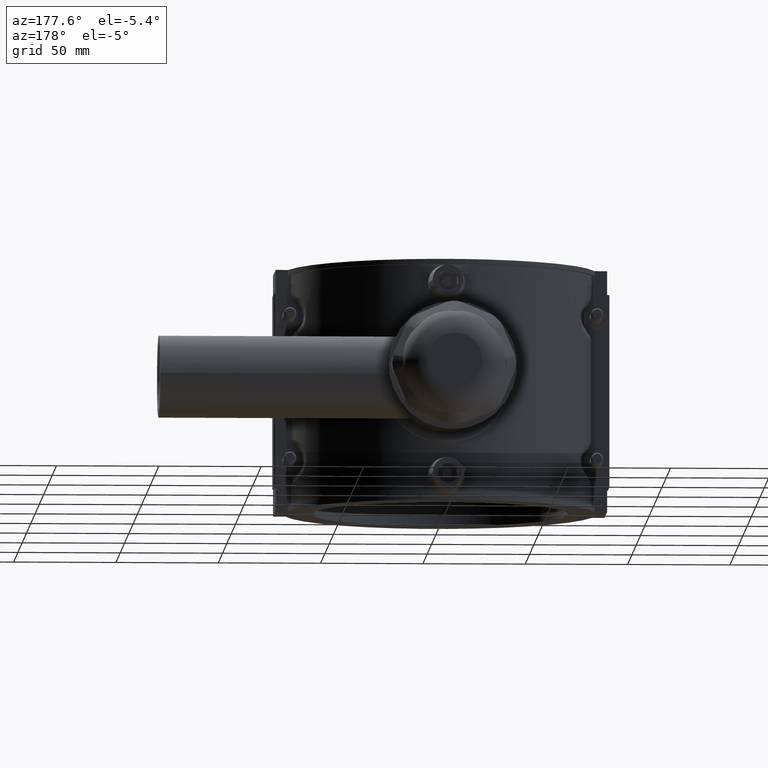
[diagram: clean part render]
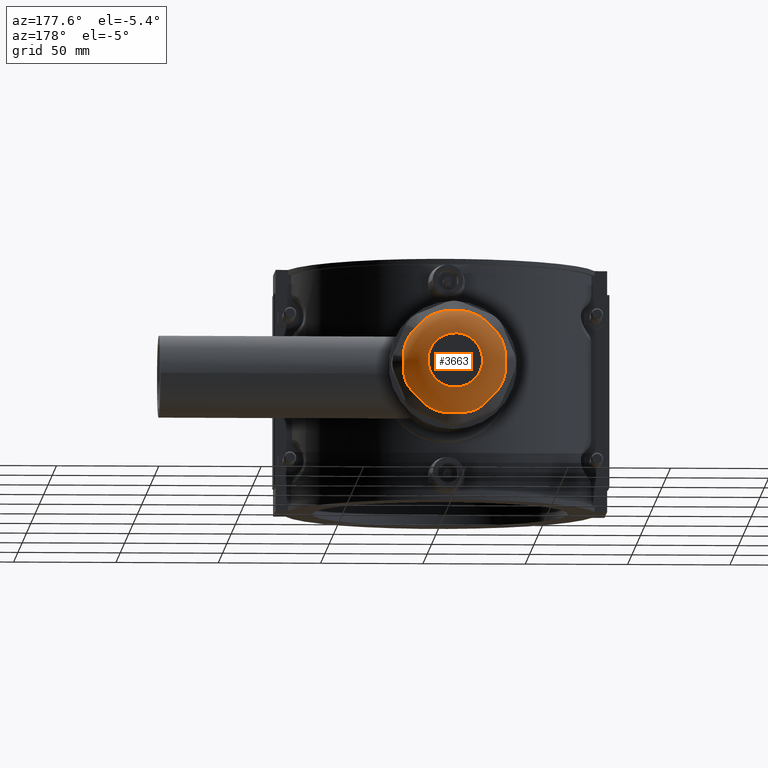
[diagram: same view with one face highlighted and labeled with its STEP entity id]
A machine part, auxiliary view. The second image highlights one B-rep face of the part: STEP entity #3663.
In plain terms, the highlighted toroidal blend (fillet) surface has major radius 13.3458 mm and minor (blend) radius 12.5 mm.
Its self-contained STEP definition (entity closure, byte-faithful):
#15=TOROIDAL_SURFACE('',#3904,13.3458333631272,12.5);
#801=CIRCLE('',#3877,25.);
#802=CIRCLE('',#3879,25.);
#803=CIRCLE('',#3881,25.);
#804=CIRCLE('',#3883,25.);
#805=CIRCLE('',#3885,25.);
#806=CIRCLE('',#3887,25.);
#807=CIRCLE('',#3889,25.);
#808=CIRCLE('',#3891,25.);
#813=CIRCLE('',#3905,13.3458333631272);
#910=FACE_BOUND('',#1239,.T.);
#1009=FACE_OUTER_BOUND('',#1238,.T.);
#1238=EDGE_LOOP('',(#2663,#2664,#2665,#2666,#2667,#2668,#2669,#2670,#2671,
#2672,#2673,#2674,#2675,#2676,#2677,#2678,#2679,#2680,#2681,#2682,#2683,
#2684,#2685,#2686,#2687,#2688,#2689,#2690,#2691,#2692,#2693,#2694));
#1239=EDGE_LOOP('',(#2695));
#1466=B_SPLINE_CURVE_WITH_KNOTS('',3,(#5398,#5399,#5400,#5401),
 .UNSPECIFIED.,.F.,.F.,(4,4),(1.08855433793764,1.23089313147004),
 .UNSPECIFIED.);
#1468=B_SPLINE_CURVE_WITH_KNOTS('',3,(#5434,#5435,#5436,#5437),
 .UNSPECIFIED.,.F.,.F.,(4,4),(0.,0.0873490999777743),.UNSPECIFIED.);
#1470=B_SPLINE_CURVE_WITH_KNOTS('',3,(#5445,#5446,#5447,#5448,#5449,#5450,
#5451,#5452,#5453,#5454,#5455,#5456,#5457,#5458,#5459),.UNSPECIFIED.,.F.,
 .F.,(4,2,2,3,2,2,4),(4.52220046310582,4.61628434124346,4.90606041344941,
5.19583648565536,5.48561255786132,5.77538863006727,5.8694725082049),
 .UNSPECIFIED.);
#1471=B_SPLINE_CURVE_WITH_KNOTS('',3,(#5478,#5479,#5480,#5481),
 .UNSPECIFIED.,.F.,.F.,(4,4),(1.08855433793769,1.23089313147009),
 .UNSPECIFIED.);
#1473=B_SPLINE_CURVE_WITH_KNOTS('',3,(#5514,#5515,#5516,#5517),
 .UNSPECIFIED.,.F.,.F.,(4,4),(0.,0.0873490999777791),.UNSPECIFIED.);
#1475=B_SPLINE_CURVE_WITH_KNOTS('',3,(#5525,#5526,#5527,#5528,#5529,#5530,
#5531,#5532,#5533,#5534,#5535,#5536,#5537,#5538,#5539),.UNSPECIFIED.,.F.,
 .F.,(4,2,2,3,2,2,4),(4.52220046310578,4.61628434124297,4.90606041344914,
5.19583648565532,5.48561255786149,5.77538863006766,5.86947250820485),
 .UNSPECIFIED.);
#1476=B_SPLINE_CURVE_WITH_KNOTS('',3,(#5558,#5559,#5560,#5561),
 .UNSPECIFIED.,.F.,.F.,(4,4),(1.08855433793773,1.23089313147014),
 .UNSPECIFIED.);
#1478=B_SPLINE_CURVE_WITH_KNOTS('',3,(#5594,#5595,#5596,#5597),
 .UNSPECIFIED.,.F.,.F.,(4,4),(0.,0.0873490999777642),.UNSPECIFIED.);
#1480=B_SPLINE_CURVE_WITH_KNOTS('',3,(#5605,#5606,#5607,#5608,#5609,#5610,
#5611,#5612,#5613,#5614,#5615,#5616,#5617,#5618,#5619),.UNSPECIFIED.,.F.,
 .F.,(4,2,2,3,2,2,4),(4.52220046310582,4.61628434124346,4.90606041344941,
5.19583648565536,5.48561255786131,5.77538863006726,5.8694725082049),
 .UNSPECIFIED.);
#1481=B_SPLINE_CURVE_WITH_KNOTS('',3,(#5638,#5639,#5640,#5641),
 .UNSPECIFIED.,.F.,.F.,(4,4),(1.08855433793765,1.23089313147006),
 .UNSPECIFIED.);
#1483=B_SPLINE_CURVE_WITH_KNOTS('',3,(#5674,#5675,#5676,#5677),
 .UNSPECIFIED.,.F.,.F.,(4,4),(0.,0.0873490999777652),.UNSPECIFIED.);
#1485=B_SPLINE_CURVE_WITH_KNOTS('',3,(#5685,#5686,#5687,#5688,#5689,#5690,
#5691,#5692,#5693,#5694,#5695,#5696,#5697,#5698,#5699),.UNSPECIFIED.,.F.,
 .F.,(4,2,2,3,2,2,4),(4.5222004631058,4.61628434124345,4.90606041344939,
5.19583648565534,5.48561255786128,5.77538863006723,5.86947250820488),
 .UNSPECIFIED.);
#1486=B_SPLINE_CURVE_WITH_KNOTS('',3,(#5718,#5719,#5720,#5721),
 .UNSPECIFIED.,.F.,.F.,(4,4),(1.08855433793767,1.23089313147008),
 .UNSPECIFIED.);
#1488=B_SPLINE_CURVE_WITH_KNOTS('',3,(#5754,#5755,#5756,#5757),
 .UNSPECIFIED.,.F.,.F.,(4,4),(0.,0.0873490999777749),.UNSPECIFIED.);
#1490=B_SPLINE_CURVE_WITH_KNOTS('',3,(#5765,#5766,#5767,#5768,#5769,#5770,
#5771,#5772,#5773,#5774,#5775,#5776,#5777,#5778,#5779),.UNSPECIFIED.,.F.,
 .F.,(4,2,2,3,2,2,4),(4.52220046310579,4.61628434124342,4.90606041344938,
5.19583648565534,5.4856125578613,5.77538863006725,5.86947250820488),
 .UNSPECIFIED.);
#1491=B_SPLINE_CURVE_WITH_KNOTS('',3,(#5798,#5799,#5800,#5801),
 .UNSPECIFIED.,.F.,.F.,(4,4),(1.08855433793773,1.23089313147015),
 .UNSPECIFIED.);
#1493=B_SPLINE_CURVE_WITH_KNOTS('',3,(#5834,#5835,#5836,#5837),
 .UNSPECIFIED.,.F.,.F.,(4,4),(0.,0.0873490999777837),.UNSPECIFIED.);
#1495=B_SPLINE_CURVE_WITH_KNOTS('',3,(#5845,#5846,#5847,#5848,#5849,#5850,
#5851,#5852,#5853,#5854,#5855,#5856,#5857,#5858,#5859),.UNSPECIFIED.,.F.,
 .F.,(4,2,2,3,2,2,4),(4.52220046310581,4.61628434124344,4.90606041344939,
5.19583648565535,5.4856125578613,5.77538863006725,5.86947250820489),
 .UNSPECIFIED.);
#1496=B_SPLINE_CURVE_WITH_KNOTS('',3,(#5878,#5879,#5880,#5881),
 .UNSPECIFIED.,.F.,.F.,(4,4),(1.08855433793748,1.23089313146985),
 .UNSPECIFIED.);
#1498=B_SPLINE_CURVE_WITH_KNOTS('',3,(#5914,#5915,#5916,#5917),
 .UNSPECIFIED.,.F.,.F.,(4,4),(0.,0.0873490999777666),.UNSPECIFIED.);
#1500=B_SPLINE_CURVE_WITH_KNOTS('',3,(#5925,#5926,#5927,#5928,#5929,#5930,
#5931,#5932,#5933,#5934,#5935,#5936,#5937,#5938,#5939),.UNSPECIFIED.,.F.,
 .F.,(4,2,2,3,2,2,4),(4.52220046310579,4.61628434124341,4.90606041344937,
5.19583648565533,5.48561255786128,5.77538863006724,5.86947250820487),
 .UNSPECIFIED.);
#1501=B_SPLINE_CURVE_WITH_KNOTS('',3,(#5958,#5959,#5960,#5961),
 .UNSPECIFIED.,.F.,.F.,(4,4),(1.08855433793768,1.2308931314701),
 .UNSPECIFIED.);
#1503=B_SPLINE_CURVE_WITH_KNOTS('',3,(#5985,#5986,#5987,#5988),
 .UNSPECIFIED.,.F.,.F.,(4,4),(0.,0.0873490999777558),.UNSPECIFIED.);
#1505=B_SPLINE_CURVE_WITH_KNOTS('',3,(#5996,#5997,#5998,#5999,#6000,#6001,
#6002,#6003,#6004,#6005,#6006,#6007,#6008,#6009,#6010),.UNSPECIFIED.,.F.,
 .F.,(4,2,2,3,2,2,4),(4.5222004631058,4.61628434124343,4.90606041344938,
5.19583648565534,5.48561255786129,5.77538863006725,5.86947250820488),
 .UNSPECIFIED.);
#1585=VERTEX_POINT('',#5374);
#1586=VERTEX_POINT('',#5376);
#1588=VERTEX_POINT('',#5397);
#1591=VERTEX_POINT('',#5410);
#1592=VERTEX_POINT('',#5412);
#1594=VERTEX_POINT('',#5433);
#1596=VERTEX_POINT('',#5477);
#1599=VERTEX_POINT('',#5490);
#1600=VERTEX_POINT('',#5492);
#1602=VERTEX_POINT('',#5513);
#1604=VERTEX_POINT('',#5557);
#1607=VERTEX_POINT('',#5570);
#1608=VERTEX_POINT('',#5572);
#1610=VERTEX_POINT('',#5593);
#1612=VERTEX_POINT('',#5637);
#1615=VERTEX_POINT('',#5650);
#1616=VERTEX_POINT('',#5652);
#1618=VERTEX_POINT('',#5673);
#1620=VERTEX_POINT('',#5717);
#1623=VERTEX_POINT('',#5730);
#1624=VERTEX_POINT('',#5732);
#1626=VERTEX_POINT('',#5753);
#1628=VERTEX_POINT('',#5797);
#1631=VERTEX_POINT('',#5810);
#1632=VERTEX_POINT('',#5812);
#1634=VERTEX_POINT('',#5833);
#1636=VERTEX_POINT('',#5877);
#1639=VERTEX_POINT('',#5890);
#1640=VERTEX_POINT('',#5892);
#1642=VERTEX_POINT('',#5913);
#1644=VERTEX_POINT('',#5957);
#1646=VERTEX_POINT('',#5984);
#1657=VERTEX_POINT('',#6063);
#1942=EDGE_CURVE('',#1586,#1588,#1466,.F.);
#1949=EDGE_CURVE('',#1594,#1591,#1468,.F.);
#1952=EDGE_CURVE('',#1588,#1594,#1470,.F.);
#1954=EDGE_CURVE('',#1592,#1596,#1471,.F.);
#1961=EDGE_CURVE('',#1602,#1599,#1473,.F.);
#1964=EDGE_CURVE('',#1596,#1602,#1475,.F.);
#1966=EDGE_CURVE('',#1600,#1604,#1476,.F.);
#1973=EDGE_CURVE('',#1610,#1607,#1478,.F.);
#1976=EDGE_CURVE('',#1604,#1610,#1480,.F.);
#1978=EDGE_CURVE('',#1608,#1612,#1481,.F.);
#1985=EDGE_CURVE('',#1618,#1615,#1483,.F.);
#1988=EDGE_CURVE('',#1612,#1618,#1485,.F.);
#1990=EDGE_CURVE('',#1616,#1620,#1486,.F.);
#1997=EDGE_CURVE('',#1626,#1623,#1488,.F.);
#2000=EDGE_CURVE('',#1620,#1626,#1490,.F.);
#2002=EDGE_CURVE('',#1624,#1628,#1491,.F.);
#2009=EDGE_CURVE('',#1634,#1631,#1493,.F.);
#2012=EDGE_CURVE('',#1628,#1634,#1495,.F.);
#2014=EDGE_CURVE('',#1632,#1636,#1496,.F.);
#2021=EDGE_CURVE('',#1642,#1639,#1498,.F.);
#2024=EDGE_CURVE('',#1636,#1642,#1500,.F.);
#2026=EDGE_CURVE('',#1640,#1644,#1501,.F.);
#2029=EDGE_CURVE('',#1646,#1585,#1503,.F.);
#2032=EDGE_CURVE('',#1644,#1646,#1505,.F.);
#2034=EDGE_CURVE('',#1608,#1607,#801,.T.);
#2035=EDGE_CURVE('',#1600,#1599,#802,.T.);
#2036=EDGE_CURVE('',#1592,#1591,#803,.T.);
#2037=EDGE_CURVE('',#1586,#1585,#804,.T.);
#2038=EDGE_CURVE('',#1640,#1639,#805,.T.);
#2039=EDGE_CURVE('',#1632,#1631,#806,.T.);
#2040=EDGE_CURVE('',#1624,#1623,#807,.T.);
#2041=EDGE_CURVE('',#1616,#1615,#808,.T.);
#2059=EDGE_CURVE('',#1657,#1657,#813,.T.);
#2663=ORIENTED_EDGE('',*,*,#2036,.T.);
#2664=ORIENTED_EDGE('',*,*,#1949,.F.);
#2665=ORIENTED_EDGE('',*,*,#1952,.F.);
#2666=ORIENTED_EDGE('',*,*,#1942,.F.);
#2667=ORIENTED_EDGE('',*,*,#2037,.T.);
#2668=ORIENTED_EDGE('',*,*,#2029,.F.);
#2669=ORIENTED_EDGE('',*,*,#2032,.F.);
#2670=ORIENTED_EDGE('',*,*,#2026,.F.);
#2671=ORIENTED_EDGE('',*,*,#2038,.T.);
#2672=ORIENTED_EDGE('',*,*,#2021,.F.);
#2673=ORIENTED_EDGE('',*,*,#2024,.F.);
#2674=ORIENTED_EDGE('',*,*,#2014,.F.);
#2675=ORIENTED_EDGE('',*,*,#2039,.T.);
#2676=ORIENTED_EDGE('',*,*,#2009,.F.);
#2677=ORIENTED_EDGE('',*,*,#2012,.F.);
#2678=ORIENTED_EDGE('',*,*,#2002,.F.);
#2679=ORIENTED_EDGE('',*,*,#2040,.T.);
#2680=ORIENTED_EDGE('',*,*,#1997,.F.);
#2681=ORIENTED_EDGE('',*,*,#2000,.F.);
#2682=ORIENTED_EDGE('',*,*,#1990,.F.);
#2683=ORIENTED_EDGE('',*,*,#2041,.T.);
#2684=ORIENTED_EDGE('',*,*,#1985,.F.);
#2685=ORIENTED_EDGE('',*,*,#1988,.F.);
#2686=ORIENTED_EDGE('',*,*,#1978,.F.);
#2687=ORIENTED_EDGE('',*,*,#2034,.T.);
#2688=ORIENTED_EDGE('',*,*,#1973,.F.);
#2689=ORIENTED_EDGE('',*,*,#1976,.F.);
#2690=ORIENTED_EDGE('',*,*,#1966,.F.);
#2691=ORIENTED_EDGE('',*,*,#2035,.T.);
#2692=ORIENTED_EDGE('',*,*,#1961,.F.);
#2693=ORIENTED_EDGE('',*,*,#1964,.F.);
#2694=ORIENTED_EDGE('',*,*,#1954,.F.);
#2695=ORIENTED_EDGE('',*,*,#2059,.T.);
#3663=ADVANCED_FACE('',(#1009,#910),#15,.T.);
#3877=AXIS2_PLACEMENT_3D('',#6013,#4286,#4287);
#3879=AXIS2_PLACEMENT_3D('',#6015,#4290,#4291);
#3881=AXIS2_PLACEMENT_3D('',#6017,#4294,#4295);
#3883=AXIS2_PLACEMENT_3D('',#6019,#4298,#4299);
#3885=AXIS2_PLACEMENT_3D('',#6021,#4302,#4303);
#3887=AXIS2_PLACEMENT_3D('',#6023,#4306,#4307);
#3889=AXIS2_PLACEMENT_3D('',#6025,#4310,#4311);
#3891=AXIS2_PLACEMENT_3D('',#6027,#4314,#4315);
#3904=AXIS2_PLACEMENT_3D('',#6062,#4353,#4354);
#3905=AXIS2_PLACEMENT_3D('',#6064,#4355,#4356);
#4286=DIRECTION('center_axis',(0.,1.,3.06161699786838E-16));
#4287=DIRECTION('ref_axis',(1.,0.,0.));
#4290=DIRECTION('center_axis',(0.,1.,3.06161699786838E-16));
#4291=DIRECTION('ref_axis',(1.,0.,0.));
#4294=DIRECTION('center_axis',(0.,1.,3.06161699786838E-16));
#4295=DIRECTION('ref_axis',(1.,0.,0.));
#4298=DIRECTION('center_axis',(0.,1.,3.06161699786838E-16));
#4299=DIRECTION('ref_axis',(1.,0.,0.));
#4302=DIRECTION('center_axis',(0.,1.,3.06161699786838E-16));
#4303=DIRECTION('ref_axis',(1.,0.,0.));
#4306=DIRECTION('center_axis',(0.,1.,3.06161699786838E-16));
#4307=DIRECTION('ref_axis',(1.,0.,0.));
#4310=DIRECTION('center_axis',(0.,1.,3.06161699786838E-16));
#4311=DIRECTION('ref_axis',(1.,0.,0.));
#4314=DIRECTION('center_axis',(0.,1.,3.06161699786838E-16));
#4315=DIRECTION('ref_axis',(1.,0.,0.));
#4353=DIRECTION('center_axis',(0.,1.,3.06161699786838E-16));
#4354=DIRECTION('ref_axis',(-6.12323399573677E-17,0.,1.));
#4355=DIRECTION('center_axis',(0.,-1.,-3.06161699786838E-16));
#4356=DIRECTION('ref_axis',(-6.12323399573677E-17,-3.32754948879419E-16,
1.));
#5374=CARTESIAN_POINT('',(-19.126208678676,168.52,-16.099321152761));
#5376=CARTESIAN_POINT('',(-16.099321152761,168.52,-19.126208678676));
#5397=CARTESIAN_POINT('',(-15.5196838126061,168.20758258967,-19.7477336477909));
#5398=CARTESIAN_POINT('Ctrl Pts',(-15.5196838126062,168.20758258967,-19.7477336477908));
#5399=CARTESIAN_POINT('Ctrl Pts',(-15.7224557817307,168.327642621569,-19.5337907060166));
#5400=CARTESIAN_POINT('Ctrl Pts',(-15.9151953273503,168.432147372631,-19.3257322216333));
#5401=CARTESIAN_POINT('Ctrl Pts',(-16.099321152761,168.52,-19.126208678676));
#5410=CARTESIAN_POINT('',(-2.14033269546344,168.52,-24.9082110146981));
#5412=CARTESIAN_POINT('',(2.14033269546349,168.52,-24.9082110146981));
#5433=CARTESIAN_POINT('',(-2.98968270965376,168.20758258967,-24.9378300411836));
#5434=CARTESIAN_POINT('Ctrl Pts',(-2.14033269546344,168.52,-24.9082110146981));
#5435=CARTESIAN_POINT('Ctrl Pts',(-2.41713157276955,168.430360466263,-24.9193203016705));
#5436=CARTESIAN_POINT('Ctrl Pts',(-2.70023309130938,168.325518860951,-24.93007069856));
#5437=CARTESIAN_POINT('Ctrl Pts',(-2.98968270965375,168.20758258967,-24.9378300411836));
#5445=CARTESIAN_POINT('Ctrl Pts',(-2.98968270965461,168.20758258967,-24.9378300411836));
#5446=CARTESIAN_POINT('Ctrl Pts',(-3.30765873628699,168.078023230939,-24.9463540978081));
#5447=CARTESIAN_POINT('Ctrl Pts',(-3.62686123918216,167.960011468837,-24.9418711028071));
#5448=CARTESIAN_POINT('Ctrl Pts',(-4.83691219495735,167.54775242088,-24.8868775637717));
#5449=CARTESIAN_POINT('Ctrl Pts',(-5.85136238792362,167.290865148452,-24.7447313155233));
#5450=CARTESIAN_POINT('Ctrl Pts',(-7.86763062559708,166.95829329166,-24.2695388499253));
#5451=CARTESIAN_POINT('Ctrl Pts',(-8.86947972560032,166.882230191359,-23.9368894717484));
#5452=CARTESIAN_POINT('Ctrl Pts',(-9.76187366600896,166.882230191359,-23.5672477986516));
#5453=CARTESIAN_POINT('Ctrl Pts',(-10.6542676064176,166.882230191359,-23.1976061255547));
#5454=CARTESIAN_POINT('Ctrl Pts',(-11.5979005298219,166.95829329166,-22.7244104642832));
#5455=CARTESIAN_POINT('Ctrl Pts',(-13.359629288165,167.290865148452,-21.6347053355264));
#5456=CARTESIAN_POINT('Ctrl Pts',(-14.1774664748441,167.54775242088,-21.0178933009606));
#5457=CARTESIAN_POINT('Ctrl Pts',(-15.0719880156274,167.960011468837,-20.2011443689241));
#5458=CARTESIAN_POINT('Ctrl Pts',(-15.3008682261614,168.078023230939,-19.9786040707204));
#5459=CARTESIAN_POINT('Ctrl Pts',(-15.5196838126056,168.20758258967,-19.7477336477915));
#5477=CARTESIAN_POINT('',(2.98968270965381,168.20758258967,-24.9378300411836));
#5478=CARTESIAN_POINT('Ctrl Pts',(2.98968270965379,168.20758258967,-24.9378300411836));
#5479=CARTESIAN_POINT('Ctrl Pts',(2.69502077033574,168.327642621569,-24.9299309706705));
#5480=CARTESIAN_POINT('Ctrl Pts',(2.41161376543449,168.432147372631,-24.9190988451901));
#5481=CARTESIAN_POINT('Ctrl Pts',(2.14033269546349,168.52,-24.9082110146981));
#5490=CARTESIAN_POINT('',(16.099321152761,168.52,-19.126208678676));
#5492=CARTESIAN_POINT('',(19.126208678676,168.52,-16.099321152761));
#5513=CARTESIAN_POINT('',(15.5196838126062,168.20758258967,-19.7477336477908));
#5514=CARTESIAN_POINT('Ctrl Pts',(16.099321152761,168.52,-19.126208678676));
#5515=CARTESIAN_POINT('Ctrl Pts',(15.9114502417453,168.430360466263,-19.3297904939963));
#5516=CARTESIAN_POINT('Ctrl Pts',(15.7188689167627,168.325518860951,-19.537575176061));
#5517=CARTESIAN_POINT('Ctrl Pts',(15.5196838126062,168.20758258967,-19.7477336477909));
#5525=CARTESIAN_POINT('Ctrl Pts',(15.5196838126056,168.20758258967,-19.7477336477915));
#5526=CARTESIAN_POINT('Ctrl Pts',(15.3008682261625,168.07802323094,-19.9786040707193));
#5527=CARTESIAN_POINT('Ctrl Pts',(15.0719880156297,167.960011468839,-20.2011443689218));
#5528=CARTESIAN_POINT('Ctrl Pts',(14.1774664748473,167.547752420881,-21.0178933009581));
#5529=CARTESIAN_POINT('Ctrl Pts',(13.3596292881678,167.290865148453,-21.6347053355244));
#5530=CARTESIAN_POINT('Ctrl Pts',(11.5979005298236,166.95829329166,-22.7244104642823));
#5531=CARTESIAN_POINT('Ctrl Pts',(10.6542676064179,166.88223019136,-23.1976061255535));
#5532=CARTESIAN_POINT('Ctrl Pts',(9.76187366600857,166.88223019136,-23.5672477986506));
#5533=CARTESIAN_POINT('Ctrl Pts',(8.86947972559924,166.88223019136,-23.9368894717477));
#5534=CARTESIAN_POINT('Ctrl Pts',(7.86763062559531,166.95829329166,-24.2695388499259));
#5535=CARTESIAN_POINT('Ctrl Pts',(5.85136238792033,167.290865148453,-24.7447313155239));
#5536=CARTESIAN_POINT('Ctrl Pts',(4.83691219495331,167.547752420881,-24.8868775637722));
#5537=CARTESIAN_POINT('Ctrl Pts',(3.62686123917896,167.960011468839,-24.9418711028072));
#5538=CARTESIAN_POINT('Ctrl Pts',(3.30765873628549,168.07802323094,-24.946354097808));
#5539=CARTESIAN_POINT('Ctrl Pts',(2.98968270965467,168.20758258967,-24.9378300411836));
#5557=CARTESIAN_POINT('',(19.7477336477909,168.20758258967,-15.5196838126061));
#5558=CARTESIAN_POINT('Ctrl Pts',(19.7477336477909,168.20758258967,-15.5196838126061));
#5559=CARTESIAN_POINT('Ctrl Pts',(19.5337907060166,168.327642621569,-15.7224557817306));
#5560=CARTESIAN_POINT('Ctrl Pts',(19.3257322216333,168.432147372631,-15.9151953273502));
#5561=CARTESIAN_POINT('Ctrl Pts',(19.126208678676,168.52,-16.099321152761));
#5570=CARTESIAN_POINT('',(24.9082110146982,168.52,-2.14033269546337));
#5572=CARTESIAN_POINT('',(24.9082110146982,168.52,2.14033269546347));
#5593=CARTESIAN_POINT('',(24.9378300411836,168.20758258967,-2.98968270965374));
#5594=CARTESIAN_POINT('Ctrl Pts',(24.9082110146981,168.52,-2.14033269546338));
#5595=CARTESIAN_POINT('Ctrl Pts',(24.9193203016705,168.430360466263,-2.41713157276946));
#5596=CARTESIAN_POINT('Ctrl Pts',(24.93007069856,168.325518860951,-2.70023309130931));
#5597=CARTESIAN_POINT('Ctrl Pts',(24.9378300411836,168.20758258967,-2.98968270965376));
#5605=CARTESIAN_POINT('Ctrl Pts',(24.9378300411836,168.20758258967,-2.9896827096546));
#5606=CARTESIAN_POINT('Ctrl Pts',(24.9463540978081,168.078023230939,-3.30765873628699));
#5607=CARTESIAN_POINT('Ctrl Pts',(24.9418711028072,167.960011468837,-3.62686123918216));
#5608=CARTESIAN_POINT('Ctrl Pts',(24.8868775637717,167.54775242088,-4.83691219495736));
#5609=CARTESIAN_POINT('Ctrl Pts',(24.7447313155233,167.290865148452,-5.85136238792362));
#5610=CARTESIAN_POINT('Ctrl Pts',(24.2695388499253,166.95829329166,-7.86763062559706));
#5611=CARTESIAN_POINT('Ctrl Pts',(23.9368894717484,166.882230191359,-8.86947972560028));
#5612=CARTESIAN_POINT('Ctrl Pts',(23.5672477986516,166.882230191359,-9.76187366600891));
#5613=CARTESIAN_POINT('Ctrl Pts',(23.1976061255548,166.882230191359,-10.6542676064175));
#5614=CARTESIAN_POINT('Ctrl Pts',(22.7244104642832,166.95829329166,-11.5979005298218));
#5615=CARTESIAN_POINT('Ctrl Pts',(21.6347053355264,167.290865148452,-13.3596292881649));
#5616=CARTESIAN_POINT('Ctrl Pts',(21.0178933009606,167.54775242088,-14.177466474844));
#5617=CARTESIAN_POINT('Ctrl Pts',(20.2011443689241,167.960011468837,-15.0719880156273));
#5618=CARTESIAN_POINT('Ctrl Pts',(19.9786040707204,168.078023230939,-15.3008682261614));
#5619=CARTESIAN_POINT('Ctrl Pts',(19.7477336477915,168.20758258967,-15.5196838126055));
#5637=CARTESIAN_POINT('',(24.9378300411836,168.20758258967,2.98968270965383));
#5638=CARTESIAN_POINT('Ctrl Pts',(24.9378300411836,168.20758258967,2.98968270965384));
#5639=CARTESIAN_POINT('Ctrl Pts',(24.9299309706705,168.327642621569,2.69502077033577));
#5640=CARTESIAN_POINT('Ctrl Pts',(24.9190988451901,168.432147372631,2.41161376543449));
#5641=CARTESIAN_POINT('Ctrl Pts',(24.9082110146982,168.52,2.14033269546348));
#5650=CARTESIAN_POINT('',(19.126208678676,168.52,16.0993211527611));
#5652=CARTESIAN_POINT('',(16.0993211527611,168.52,19.126208678676));
#5673=CARTESIAN_POINT('',(19.7477336477909,168.20758258967,15.5196838126062));
#5674=CARTESIAN_POINT('Ctrl Pts',(19.126208678676,168.52,16.0993211527611));
#5675=CARTESIAN_POINT('Ctrl Pts',(19.3297904939962,168.430360466263,15.9114502417454));
#5676=CARTESIAN_POINT('Ctrl Pts',(19.537575176061,168.325518860951,15.7188689167627));
#5677=CARTESIAN_POINT('Ctrl Pts',(19.7477336477909,168.20758258967,15.5196838126062));
#5685=CARTESIAN_POINT('Ctrl Pts',(19.7477336477915,168.20758258967,15.5196838126056));
#5686=CARTESIAN_POINT('Ctrl Pts',(19.9786040707205,168.078023230939,15.3008682261615));
#5687=CARTESIAN_POINT('Ctrl Pts',(20.2011443689242,167.960011468837,15.0719880156274));
#5688=CARTESIAN_POINT('Ctrl Pts',(21.0178933009607,167.54775242088,14.177466474844));
#5689=CARTESIAN_POINT('Ctrl Pts',(21.6347053355264,167.290865148452,13.3596292881649));
#5690=CARTESIAN_POINT('Ctrl Pts',(22.7244104642832,166.95829329166,11.5979005298219));
#5691=CARTESIAN_POINT('Ctrl Pts',(23.1976061255548,166.882230191359,10.6542676064176));
#5692=CARTESIAN_POINT('Ctrl Pts',(23.5672477986516,166.882230191359,9.76187366600901));
#5693=CARTESIAN_POINT('Ctrl Pts',(23.9368894717484,166.882230191359,8.86947972560039));
#5694=CARTESIAN_POINT('Ctrl Pts',(24.2695388499253,166.95829329166,7.86763062559718));
#5695=CARTESIAN_POINT('Ctrl Pts',(24.7447313155233,167.290865148452,5.85136238792377));
#5696=CARTESIAN_POINT('Ctrl Pts',(24.8868775637717,167.54775242088,4.83691219495752));
#5697=CARTESIAN_POINT('Ctrl Pts',(24.9418711028072,167.960011468837,3.62686123918231));
#5698=CARTESIAN_POINT('Ctrl Pts',(24.9463540978081,168.078023230939,3.30765873628713));
#5699=CARTESIAN_POINT('Ctrl Pts',(24.9378300411836,168.20758258967,2.9896827096547));
#5717=CARTESIAN_POINT('',(15.5196838126061,168.20758258967,19.7477336477909));
#5718=CARTESIAN_POINT('Ctrl Pts',(15.5196838126062,168.20758258967,19.7477336477909));
#5719=CARTESIAN_POINT('Ctrl Pts',(15.7224557817307,168.327642621569,19.5337907060166));
#5720=CARTESIAN_POINT('Ctrl Pts',(15.9151953273503,168.432147372632,19.3257322216334));
#5721=CARTESIAN_POINT('Ctrl Pts',(16.099321152761,168.52,19.126208678676));
#5730=CARTESIAN_POINT('',(2.14033269546345,168.52,24.9082110146982));
#5732=CARTESIAN_POINT('',(-2.14033269546348,168.52,24.9082110146982));
#5753=CARTESIAN_POINT('',(2.98968270965377,168.20758258967,24.9378300411836));
#5754=CARTESIAN_POINT('Ctrl Pts',(2.14033269546345,168.52,24.9082110146982));
#5755=CARTESIAN_POINT('Ctrl Pts',(2.41713157276957,168.430360466263,24.9193203016705));
#5756=CARTESIAN_POINT('Ctrl Pts',(2.70023309130939,168.325518860951,24.9300706985601));
#5757=CARTESIAN_POINT('Ctrl Pts',(2.98968270965376,168.20758258967,24.9378300411836));
#5765=CARTESIAN_POINT('Ctrl Pts',(2.98968270965462,168.20758258967,24.9378300411836));
#5766=CARTESIAN_POINT('Ctrl Pts',(3.30765873628695,168.078023230939,24.9463540978082));
#5767=CARTESIAN_POINT('Ctrl Pts',(3.62686123918203,167.960011468837,24.9418711028072));
#5768=CARTESIAN_POINT('Ctrl Pts',(4.83691219495719,167.54775242088,24.8868775637718));
#5769=CARTESIAN_POINT('Ctrl Pts',(5.85136238792349,167.290865148452,24.7447313155234));
#5770=CARTESIAN_POINT('Ctrl Pts',(7.86763062559701,166.95829329166,24.2695388499254));
#5771=CARTESIAN_POINT('Ctrl Pts',(8.86947972560028,166.882230191359,23.9368894717485));
#5772=CARTESIAN_POINT('Ctrl Pts',(9.76187366600895,166.882230191359,23.5672477986516));
#5773=CARTESIAN_POINT('Ctrl Pts',(10.6542676064176,166.882230191359,23.1976061255548));
#5774=CARTESIAN_POINT('Ctrl Pts',(11.5979005298219,166.95829329166,22.7244104642832));
#5775=CARTESIAN_POINT('Ctrl Pts',(13.3596292881651,167.290865148452,21.6347053355263));
#5776=CARTESIAN_POINT('Ctrl Pts',(14.1774664748442,167.54775242088,21.0178933009605));
#5777=CARTESIAN_POINT('Ctrl Pts',(15.0719880156275,167.960011468837,20.2011443689241));
#5778=CARTESIAN_POINT('Ctrl Pts',(15.3008682261615,168.078023230939,19.9786040707204));
#5779=CARTESIAN_POINT('Ctrl Pts',(15.5196838126056,168.20758258967,19.7477336477915));
#5797=CARTESIAN_POINT('',(-2.9896827096538,168.20758258967,24.9378300411836));
#5798=CARTESIAN_POINT('Ctrl Pts',(-2.98968270965378,168.20758258967,24.9378300411836));
#5799=CARTESIAN_POINT('Ctrl Pts',(-2.69502077033573,168.327642621569,24.9299309706705));
#5800=CARTESIAN_POINT('Ctrl Pts',(-2.41161376543448,168.432147372631,24.9190988451901));
#5801=CARTESIAN_POINT('Ctrl Pts',(-2.14033269546347,168.52,24.9082110146982));
#5810=CARTESIAN_POINT('',(-16.099321152761,168.52,19.1262086786761));
#5812=CARTESIAN_POINT('',(-19.126208678676,168.52,16.0993211527611));
#5833=CARTESIAN_POINT('',(-15.5196838126062,168.20758258967,19.7477336477909));
#5834=CARTESIAN_POINT('Ctrl Pts',(-16.099321152761,168.52,19.126208678676));
#5835=CARTESIAN_POINT('Ctrl Pts',(-15.9114502417453,168.430360466263,19.3297904939963));
#5836=CARTESIAN_POINT('Ctrl Pts',(-15.7188689167627,168.325518860951,19.5375751760611));
#5837=CARTESIAN_POINT('Ctrl Pts',(-15.5196838126062,168.20758258967,19.7477336477909));
#5845=CARTESIAN_POINT('Ctrl Pts',(-15.5196838126056,168.20758258967,19.7477336477915));
#5846=CARTESIAN_POINT('Ctrl Pts',(-15.3008682261615,168.078023230939,19.9786040707204));
#5847=CARTESIAN_POINT('Ctrl Pts',(-15.0719880156274,167.960011468837,20.2011443689241));
#5848=CARTESIAN_POINT('Ctrl Pts',(-14.1774664748442,167.54775242088,21.0178933009606));
#5849=CARTESIAN_POINT('Ctrl Pts',(-13.359629288165,167.290865148452,21.6347053355264));
#5850=CARTESIAN_POINT('Ctrl Pts',(-11.5979005298219,166.95829329166,22.7244104642832));
#5851=CARTESIAN_POINT('Ctrl Pts',(-10.6542676064176,166.882230191359,23.1976061255548));
#5852=CARTESIAN_POINT('Ctrl Pts',(-9.76187366600897,166.882230191359,23.5672477986516));
#5853=CARTESIAN_POINT('Ctrl Pts',(-8.86947972560032,166.882230191359,23.9368894717485));
#5854=CARTESIAN_POINT('Ctrl Pts',(-7.86763062559707,166.95829329166,24.2695388499254));
#5855=CARTESIAN_POINT('Ctrl Pts',(-5.85136238792359,167.290865148452,24.7447313155234));
#5856=CARTESIAN_POINT('Ctrl Pts',(-4.8369121949573,167.54775242088,24.8868775637718));
#5857=CARTESIAN_POINT('Ctrl Pts',(-3.62686123918213,167.960011468837,24.9418711028072));
#5858=CARTESIAN_POINT('Ctrl Pts',(-3.30765873628701,168.078023230939,24.9463540978081));
#5859=CARTESIAN_POINT('Ctrl Pts',(-2.98968270965466,168.20758258967,24.9378300411836));
#5877=CARTESIAN_POINT('',(-19.7477336477909,168.20758258967,15.5196838126062));
#5878=CARTESIAN_POINT('Ctrl Pts',(-19.7477336477909,168.20758258967,15.5196838126062));
#5879=CARTESIAN_POINT('Ctrl Pts',(-19.5337907060166,168.327642621569,15.7224557817307));
#5880=CARTESIAN_POINT('Ctrl Pts',(-19.3257322216333,168.432147372631,15.9151953273503));
#5881=CARTESIAN_POINT('Ctrl Pts',(-19.126208678676,168.52,16.0993211527611));
#5890=CARTESIAN_POINT('',(-24.9082110146982,168.52,2.14033269546345));
#5892=CARTESIAN_POINT('',(-24.9082110146982,168.52,-2.1403326954634));
#5913=CARTESIAN_POINT('',(-24.9378300411836,168.20758258967,2.98968270965382));
#5914=CARTESIAN_POINT('Ctrl Pts',(-24.9082110146982,168.52,2.14033269546345));
#5915=CARTESIAN_POINT('Ctrl Pts',(-24.9193203016705,168.430360466263,2.41713157276954));
#5916=CARTESIAN_POINT('Ctrl Pts',(-24.93007069856,168.325518860951,2.70023309130936));
#5917=CARTESIAN_POINT('Ctrl Pts',(-24.9378300411836,168.20758258967,2.9896827096538));
#5925=CARTESIAN_POINT('Ctrl Pts',(-24.9378300411836,168.20758258967,2.98968270965468));
#5926=CARTESIAN_POINT('Ctrl Pts',(-24.9463540978081,168.078023230939,3.307658736287));
#5927=CARTESIAN_POINT('Ctrl Pts',(-24.9418711028072,167.960011468837,3.62686123918209));
#5928=CARTESIAN_POINT('Ctrl Pts',(-24.8868775637718,167.54775242088,4.83691219495724));
#5929=CARTESIAN_POINT('Ctrl Pts',(-24.7447313155233,167.290865148452,5.85136238792354));
#5930=CARTESIAN_POINT('Ctrl Pts',(-24.2695388499253,166.95829329166,7.86763062559705));
#5931=CARTESIAN_POINT('Ctrl Pts',(-23.9368894717484,166.882230191359,8.86947972560032));
#5932=CARTESIAN_POINT('Ctrl Pts',(-23.5672477986516,166.882230191359,9.76187366600898));
#5933=CARTESIAN_POINT('Ctrl Pts',(-23.1976061255548,166.882230191359,10.6542676064176));
#5934=CARTESIAN_POINT('Ctrl Pts',(-22.7244104642832,166.95829329166,11.597900529822));
#5935=CARTESIAN_POINT('Ctrl Pts',(-21.6347053355263,167.290865148452,13.3596292881651));
#5936=CARTESIAN_POINT('Ctrl Pts',(-21.0178933009605,167.54775242088,14.1774664748442));
#5937=CARTESIAN_POINT('Ctrl Pts',(-20.201144368924,167.960011468837,15.0719880156275));
#5938=CARTESIAN_POINT('Ctrl Pts',(-19.9786040707204,168.078023230939,15.3008682261615));
#5939=CARTESIAN_POINT('Ctrl Pts',(-19.7477336477915,168.20758258967,15.5196838126056));
#5957=CARTESIAN_POINT('',(-24.9378300411836,168.20758258967,-2.98968270965376));
#5958=CARTESIAN_POINT('Ctrl Pts',(-24.9378300411836,168.20758258967,-2.98968270965374));
#5959=CARTESIAN_POINT('Ctrl Pts',(-24.9299309706705,168.327642621569,-2.69502077033568));
#5960=CARTESIAN_POINT('Ctrl Pts',(-24.9190988451901,168.432147372631,-2.41161376543441));
#5961=CARTESIAN_POINT('Ctrl Pts',(-24.9082110146982,168.52,-2.14033269546339));
#5984=CARTESIAN_POINT('',(-19.7477336477909,168.20758258967,-15.5196838126061));
#5985=CARTESIAN_POINT('Ctrl Pts',(-19.126208678676,168.52,-16.099321152761));
#5986=CARTESIAN_POINT('Ctrl Pts',(-19.3297904939962,168.430360466263,-15.9114502417454));
#5987=CARTESIAN_POINT('Ctrl Pts',(-19.537575176061,168.325518860951,-15.7188689167627));
#5988=CARTESIAN_POINT('Ctrl Pts',(-19.7477336477909,168.20758258967,-15.5196838126061));
#5996=CARTESIAN_POINT('Ctrl Pts',(-19.7477336477915,168.20758258967,-15.5196838126055));
#5997=CARTESIAN_POINT('Ctrl Pts',(-19.9786040707204,168.078023230939,-15.3008682261614));
#5998=CARTESIAN_POINT('Ctrl Pts',(-20.2011443689241,167.960011468837,-15.0719880156274));
#5999=CARTESIAN_POINT('Ctrl Pts',(-21.0178933009606,167.54775242088,-14.1774664748441));
#6000=CARTESIAN_POINT('Ctrl Pts',(-21.6347053355263,167.290865148452,-13.359629288165));
#6001=CARTESIAN_POINT('Ctrl Pts',(-22.7244104642832,166.95829329166,-11.5979005298219));
#6002=CARTESIAN_POINT('Ctrl Pts',(-23.1976061255548,166.882230191359,-10.6542676064176));
#6003=CARTESIAN_POINT('Ctrl Pts',(-23.5672477986516,166.882230191359,-9.76187366600892));
#6004=CARTESIAN_POINT('Ctrl Pts',(-23.9368894717484,166.882230191359,-8.86947972560028));
#6005=CARTESIAN_POINT('Ctrl Pts',(-24.2695388499253,166.95829329166,-7.86763062559703));
#6006=CARTESIAN_POINT('Ctrl Pts',(-24.7447313155233,167.290865148452,-5.85136238792353));
#6007=CARTESIAN_POINT('Ctrl Pts',(-24.8868775637718,167.54775242088,-4.83691219495724));
#6008=CARTESIAN_POINT('Ctrl Pts',(-24.9418711028072,167.960011468837,-3.62686123918207));
#6009=CARTESIAN_POINT('Ctrl Pts',(-24.9463540978081,168.078023230939,-3.30765873628696));
#6010=CARTESIAN_POINT('Ctrl Pts',(-24.9378300411836,168.20758258967,-2.98968270965462));
#6013=CARTESIAN_POINT('Origin',(0.,168.52,3.24592634114006E-14));
#6015=CARTESIAN_POINT('Origin',(0.,168.52,3.24592634114006E-14));
#6017=CARTESIAN_POINT('Origin',(0.,168.52,3.24592634114006E-14));
#6019=CARTESIAN_POINT('Origin',(0.,168.52,3.24592634114006E-14));
#6021=CARTESIAN_POINT('Origin',(0.,168.52,3.24592634114006E-14));
#6023=CARTESIAN_POINT('Origin',(0.,168.52,3.24592634114006E-14));
#6025=CARTESIAN_POINT('Origin',(0.,168.52,3.24592634114006E-14));
#6027=CARTESIAN_POINT('Origin',(0.,168.52,3.24592634114006E-14));
#6062=CARTESIAN_POINT('Origin',(0.,164.,3.10754125283641E-14));
#6063=CARTESIAN_POINT('',(2.45158981651615E-15,176.5,-13.3458333631271));
#6064=CARTESIAN_POINT('Origin',(0.,176.5,3.49024337756996E-14));